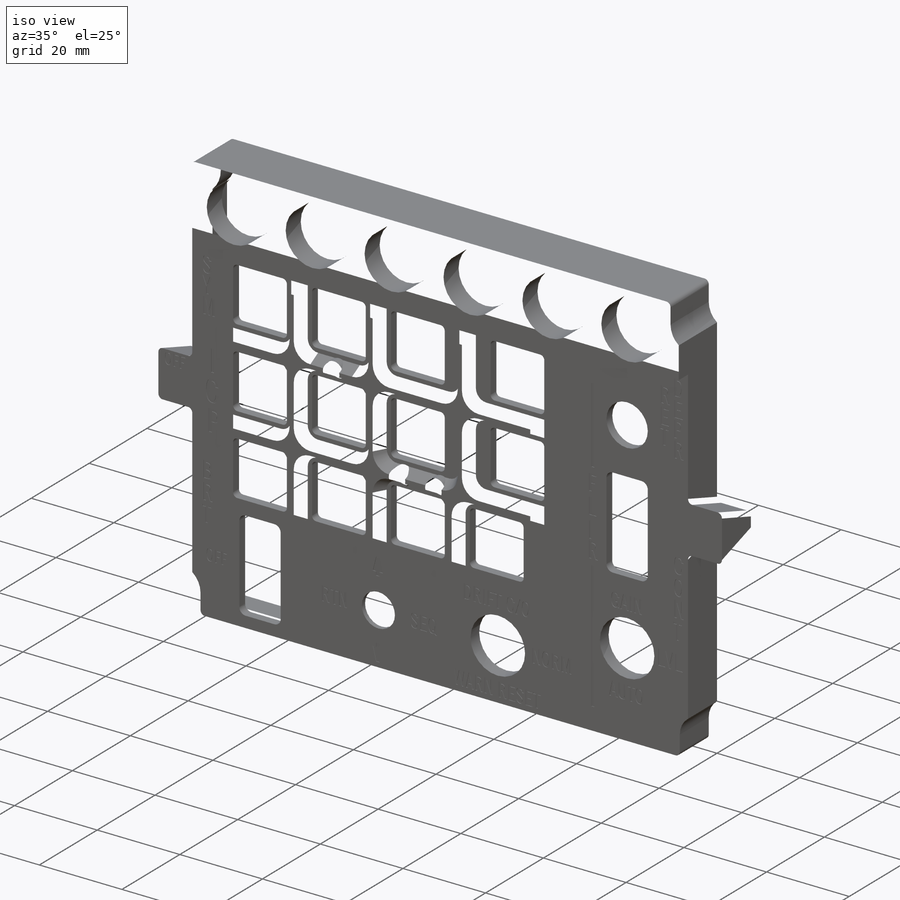
[diagram: iso view]
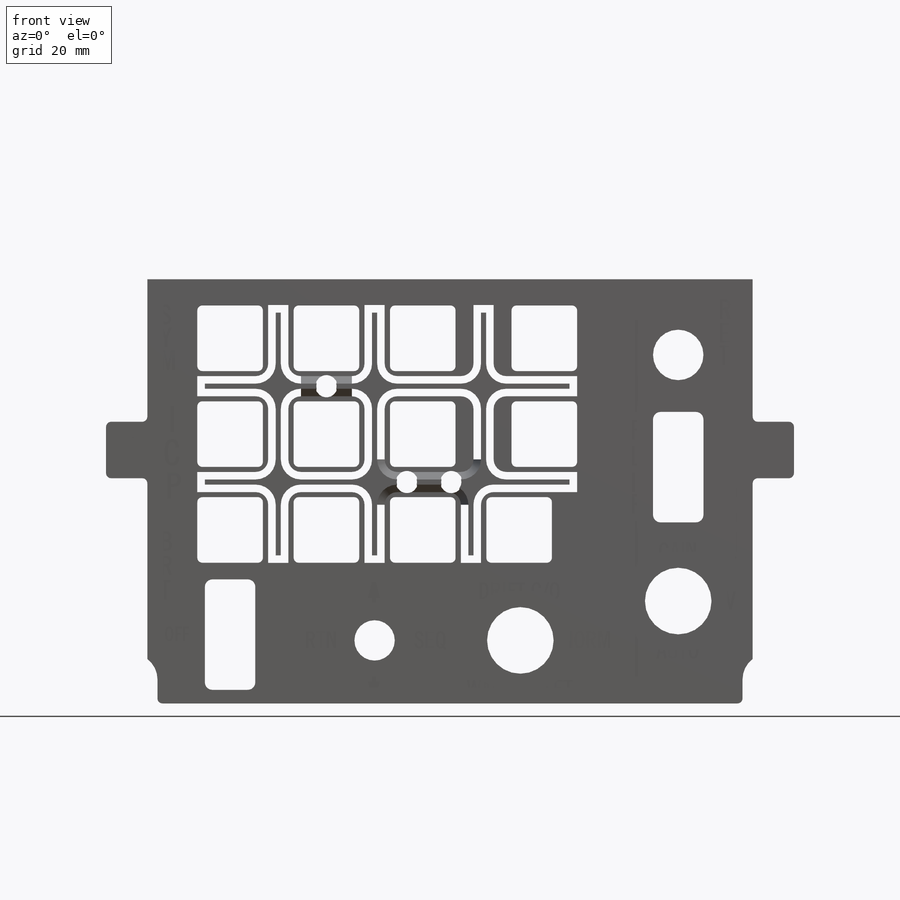
[diagram: front view]
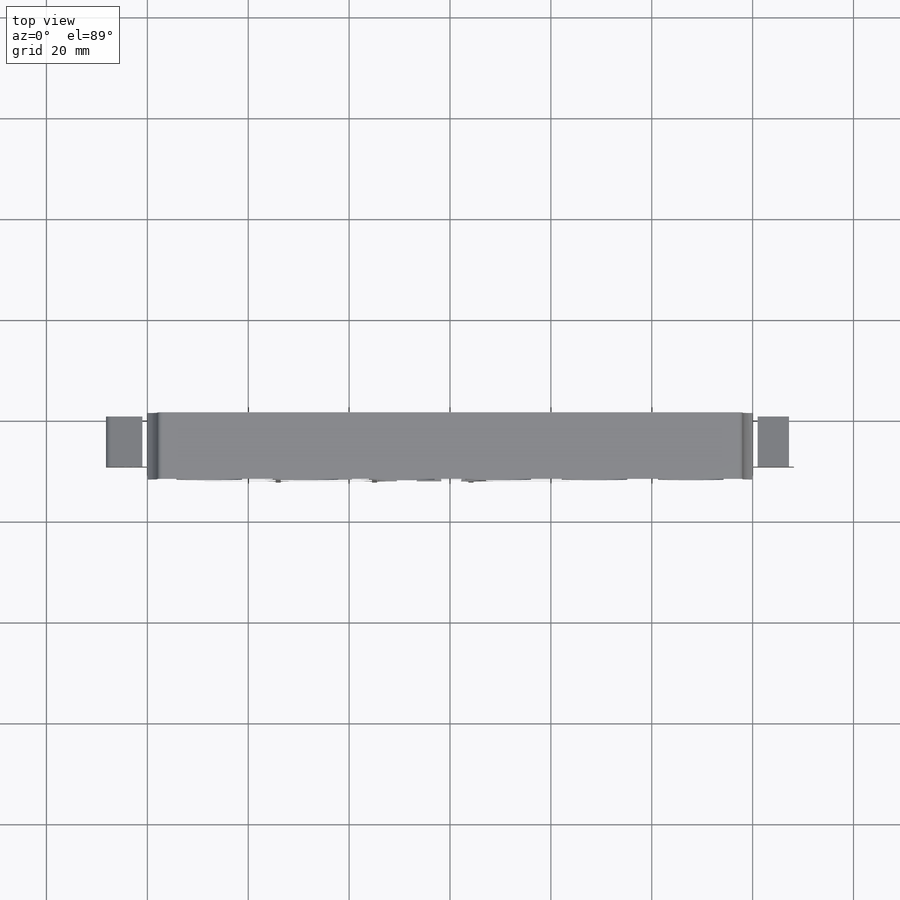
[diagram: top view]
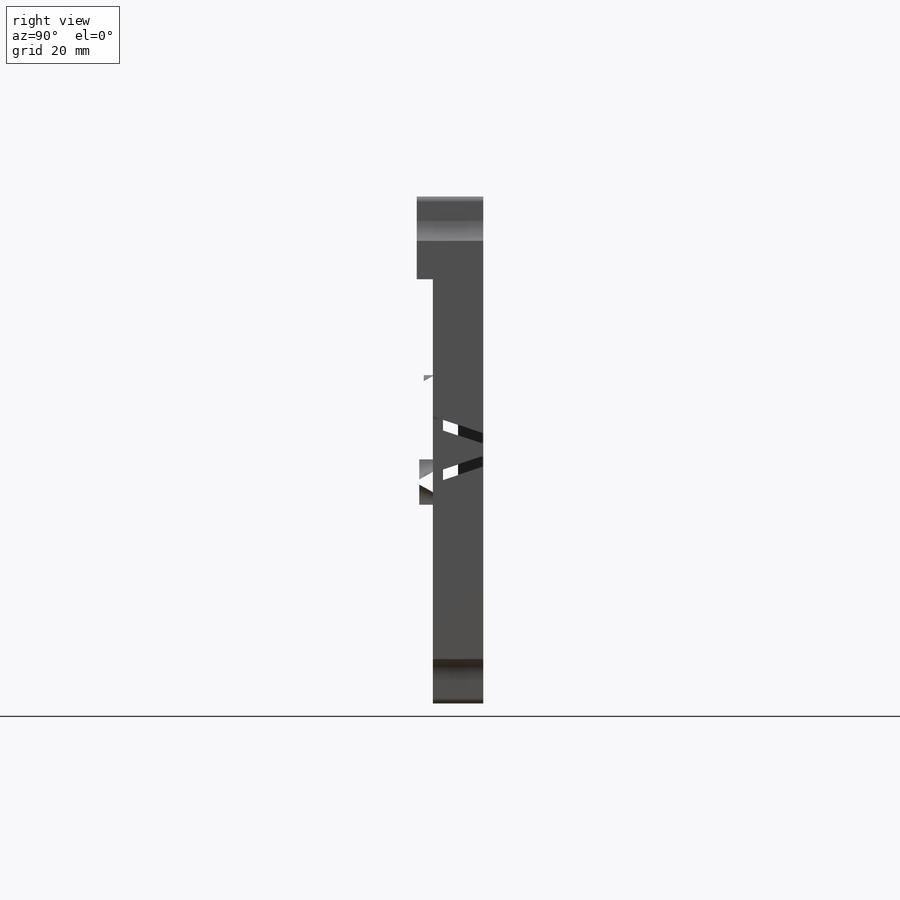
[diagram: right view]
SOLIDWORKS PART (.sldprt)
format: sldprt  version: not decoded by parser v0  size: 2,783,744 bytes
history: native  units: mm
features: sketch x14, cut_extrude x9, extrude x5, plane x3, fillet x3, chamfer x2, material x1 (+9 scaffold rows collapsed)
feature tree (46):
  scaffold x9  (default folders/planes/origin — collapsed)
  material  "PMMA"
  plane  "Přední rovina"
  plane  "Horní rovina"
  plane  "Pravá rovina"
  sketch  "Skica1"  dims[c1.D5=6.3mm c1.D9=5.0mm c2.D5=1.6mm c2.D6=100.5mm c2.D7=136.4mm c2.D8=7.0mm c2.D9=~68.69833mm c2.D1=4.0 c2.D2=3.0 c2.D3=2.0 c2.D4=2.0]
  extrude  "Přidat vysunutím1"  Depth=10mm
  sketch  "Skica3"  dims[c1.D1=0.0mm c1.D2=0.0mm c1.D3=0.0mm c2.D1=0.2mm]
  cut_extrude  "Odebrat vysunutím1"  Depth=0.1mm
  sketch  "Skica4"  dims[D1=1.4mm]
  cut_extrude  "Odebrat vysunutím2"  Depth=5mm
  sketch  "Skica5"  dims[D1=2.25mm]
  cut_extrude  "Odebrat vysunutím4"  [1 undecoded]
  sketch  "Skica6"  dims[D1=2.25mm]
  cut_extrude  "Odebrat vysunutím5"  [1 undecoded]
  fillet  "Zaoblit2"  Radius=1mm
  sketch  "Skica7"  dims[D2=16.4mm D1=0.0mm]
  extrude  "Přidat vysunutím3"  Depth=3.2mm
  sketch  "Skica8"  dims[c1.D2=2.25mm c1.D7=1.8mm c1.D9=1.8mm c1.D10=1.8mm c1.D1=15.2mm c1.D3=15.2mm c1.D4=24.1mm c1.D5=12.9mm c1.D8=24.96mm c1.D11=24.3mm c2.D10=24.3mm c2.D6=2.0]
  cut_extrude  "Odebrat vysunutím6"  Depth=3mm
  sketch  "Skica9"  dims[D1=~10.468996mm]
  cut_extrude  "Odebrat vysunutím7"  Depth=2mm
  sketch  "Skica14"  dims[D1=4.0mm D2=4.0mm D3=4.0mm]
  extrude  "Přidat vysunutím4"  Depth=2.7mm
  chamfer  "Zkosení1"  Distance=2.7mm Angle=29deg
  fillet  "Zaoblit5"  Radius=2.5mm
  chamfer  "Zkosení2"  Distance=2.7mm Angle=29deg
  sketch  "Skica15"  dims[D1=4.4mm]
  extrude  "Přidat vysunutím5"  Depth=4mm
  fillet  "Zaoblit6"  Radius=2.2mm
  sketch  "Skica16"  dims[D1=19.1mm]
  cut_extrude  "Odebrat vysunutím10"  Depth=4mm
  sketch  "Skica17"
  cut_extrude  "Odebrat vysunutím11"  Depth=1.9mm
  sketch  "Skica18"  dims[c1.D1=~2.623593mm c1.D2=~1.39301mm c2.D1=26.0mm]
  extrude  "Přidat vysunutím6"  Depth=2mm
  sketch  "Skica20"  dims[D1=~1.345008mm]
  cut_extrude  "Odebrat vysunutím12"  Depth=4mm
decode coverage: 30 of 33 modeling features carry decoded parameters
note: ~ marks probable driven/reference dimensions
note: 2 parameter values undecoded
note: suppression state not decoded; provenance and decode notes live in map.json
